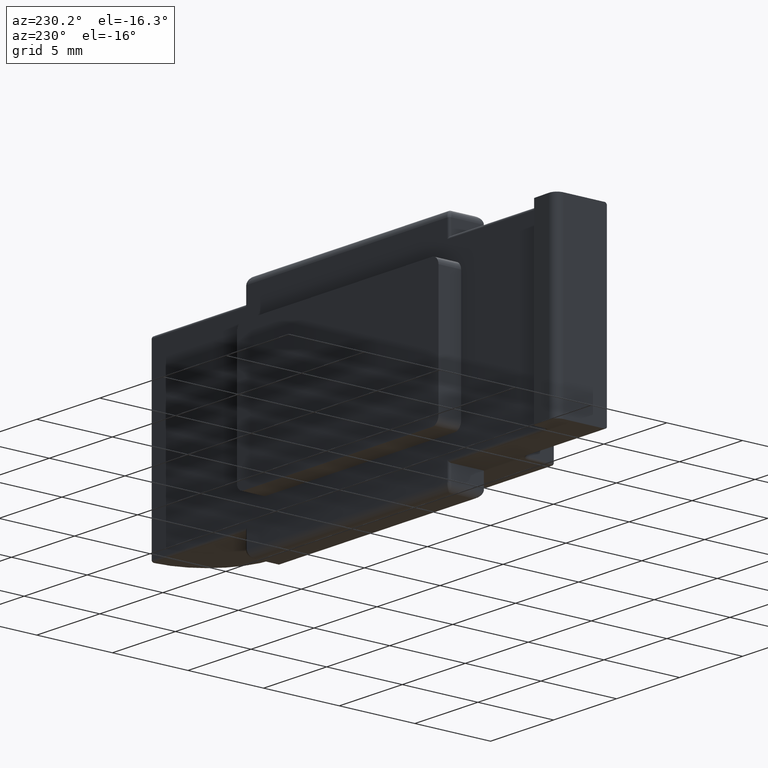
[diagram: clean part render]
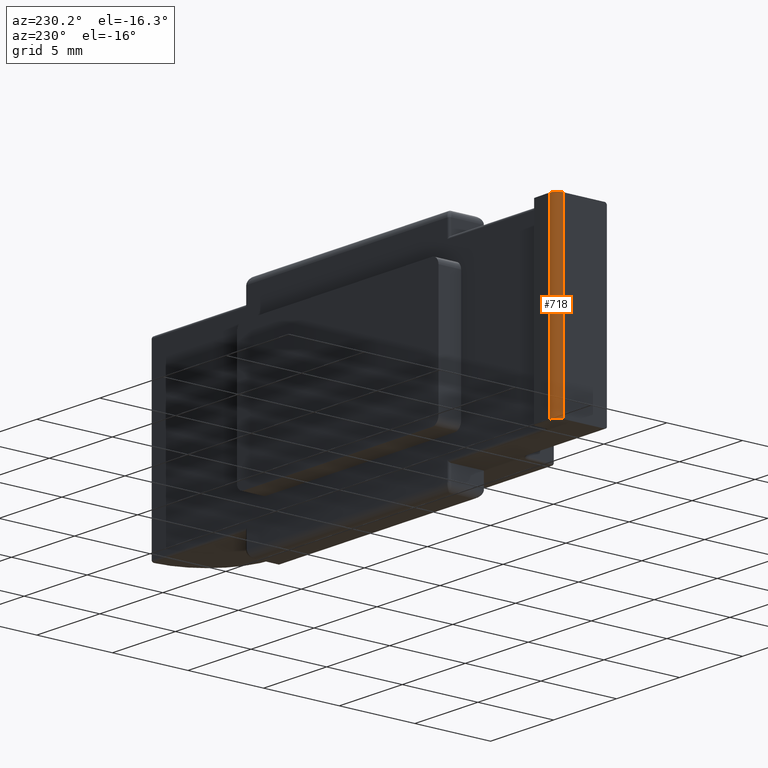
[diagram: same view with one face highlighted and labeled with its STEP entity id]
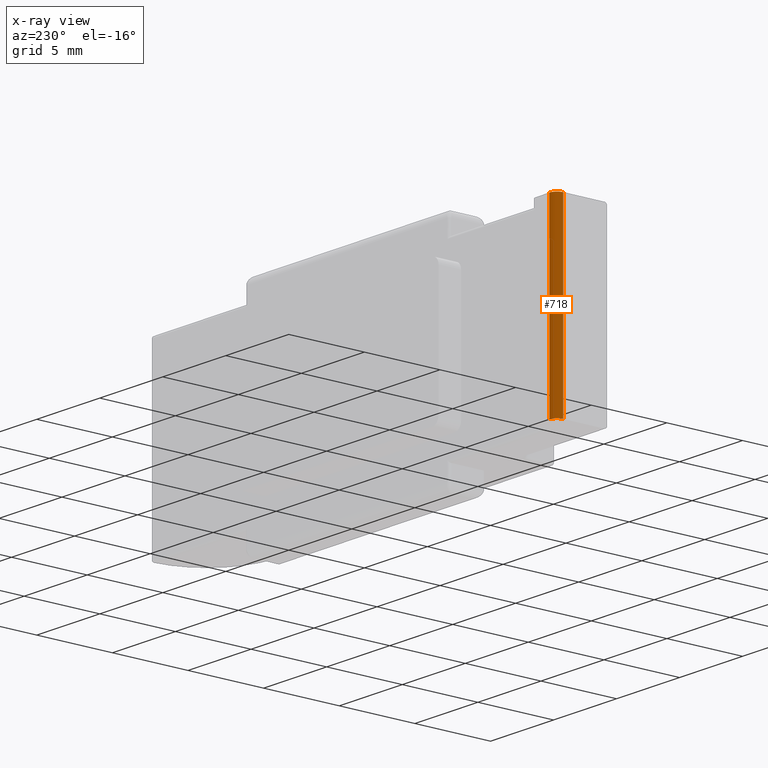
[diagram: x-ray of the same camera — body ghosted, the highlighted face saturated]
A machine part, auxiliary view. The second image highlights one B-rep face of the part: STEP entity #718.
The next image is the same camera in x-ray: the body ghosted, the highlighted face saturated — about 0% of this face is hidden behind the body in this view.
In plain terms, the highlighted cylindrical surface (edge-blend (fillet) strip) has radius 0.5 mm, axis along (0, -0, -1).
Its self-contained STEP definition (entity closure, byte-faithful):
#54 = DIRECTION ( 'NONE',  ( 0.000000000000000000, -6.162975822039132834E-33, -1.000000000000000000 ) ) ;
#96 = AXIS2_PLACEMENT_3D ( 'NONE', #1703, #1874, #1185 ) ;
#245 = CARTESIAN_POINT ( 'NONE',  ( -6.260000000000053966, -0.01265622559356444077, 12.00000000000003197 ) ) ;
#252 = FACE_OUTER_BOUND ( 'NONE', #1418, .T. ) ;
#382 = CARTESIAN_POINT ( 'NONE',  ( -6.760000000000053966, -0.01265622559356444077, 0.000000000000000000 ) ) ;
#412 = CIRCLE ( 'NONE', #1516, 0.5000000000000022204 ) ;
#457 = LINE ( 'NONE', #1260, #916 ) ;
#718 = ADVANCED_FACE ( 'NONE', ( #252 ), #1190, .T. ) ;
#731 = VERTEX_POINT ( 'NONE', #1407 ) ;
#742 = CARTESIAN_POINT ( 'NONE',  ( -6.247503904419946963, 0.4871875976104958483, 12.00000000000003197 ) ) ;
#752 = DIRECTION ( 'NONE',  ( -0.000000000000000000, 6.162975822039132834E-33, 1.000000000000000000 ) ) ;
#782 = EDGE_CURVE ( 'NONE', #1746, #832, #1437, .T. ) ;
#787 = LINE ( 'NONE', #742, #1795 ) ;
#832 = VERTEX_POINT ( 'NONE', #948 ) ;
#886 = DIRECTION ( 'NONE',  ( -1.000000000000000000, 8.876905287225028110E-16, 0.000000000000000000 ) ) ;
#916 = VECTOR ( 'NONE', #54, 1000.000000000000000 ) ;
#948 = CARTESIAN_POINT ( 'NONE',  ( -6.247503904419946963, 0.4871875976104958483, 0.000000000000000000 ) ) ;
#1185 = DIRECTION ( 'NONE',  ( -1.000000000000000000, 0.000000000000000000, 0.000000000000000000 ) ) ;
#1190 = CYLINDRICAL_SURFACE ( 'NONE', #96, 0.5000000000000022204 ) ;
#1241 = EDGE_CURVE ( 'NONE', #1315, #731, #412, .T. ) ;
#1260 = CARTESIAN_POINT ( 'NONE',  ( -6.760000000000053966, -0.01265622559356444077, 12.00000000000003197 ) ) ;
#1284 = ORIENTED_EDGE ( 'NONE', *, *, #782, .F. ) ;
#1315 = VERTEX_POINT ( 'NONE', #1753 ) ;
#1344 = ORIENTED_EDGE ( 'NONE', *, *, #1241, .F. ) ;
#1407 = CARTESIAN_POINT ( 'NONE',  ( -6.760000000000053966, -0.01265622559356444077, 12.00000000000003197 ) ) ;
#1418 = EDGE_LOOP ( 'NONE', ( #1344, #1547, #1284, #1680 ) ) ;
#1437 = CIRCLE ( 'NONE', #1636, 0.5000000000000022204 ) ;
#1516 = AXIS2_PLACEMENT_3D ( 'NONE', #245, #752, #886 ) ;
#1547 = ORIENTED_EDGE ( 'NONE', *, *, #1846, .F. ) ;
#1593 = DIRECTION ( 'NONE',  ( -0.000000000000000000, 6.162975822039132834E-33, 1.000000000000000000 ) ) ;
#1636 = AXIS2_PLACEMENT_3D ( 'NONE', #2166, #2172, #2160 ) ;
#1680 = ORIENTED_EDGE ( 'NONE', *, *, #1910, .F. ) ;
#1703 = CARTESIAN_POINT ( 'NONE',  ( -6.260000000000053966, -0.01265622559356444077, 12.00000000000003197 ) ) ;
#1746 = VERTEX_POINT ( 'NONE', #382 ) ;
#1753 = CARTESIAN_POINT ( 'NONE',  ( -6.247503904419946963, 0.4871875976104958483, 12.00000000000003197 ) ) ;
#1795 = VECTOR ( 'NONE', #1593, 1000.000000000000000 ) ;
#1846 = EDGE_CURVE ( 'NONE', #832, #1315, #787, .T. ) ;
#1874 = DIRECTION ( 'NONE',  ( 0.000000000000000000, -6.162975822039132834E-33, -1.000000000000000000 ) ) ;
#1910 = EDGE_CURVE ( 'NONE', #731, #1746, #457, .T. ) ;
#2160 = DIRECTION ( 'NONE',  ( -1.000000000000000000, 0.000000000000000000, 0.000000000000000000 ) ) ;
#2166 = CARTESIAN_POINT ( 'NONE',  ( -6.260000000000053966, -0.01265622559356444077, 0.000000000000000000 ) ) ;
#2172 = DIRECTION ( 'NONE',  ( 0.000000000000000000, -6.162975822039132834E-33, -1.000000000000000000 ) ) ;